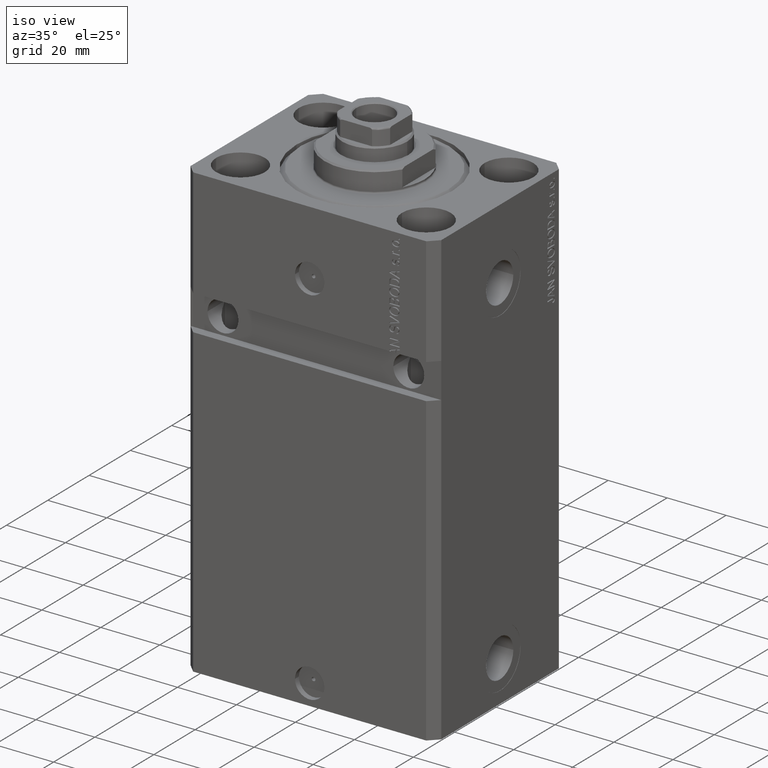
[diagram: clean part render]
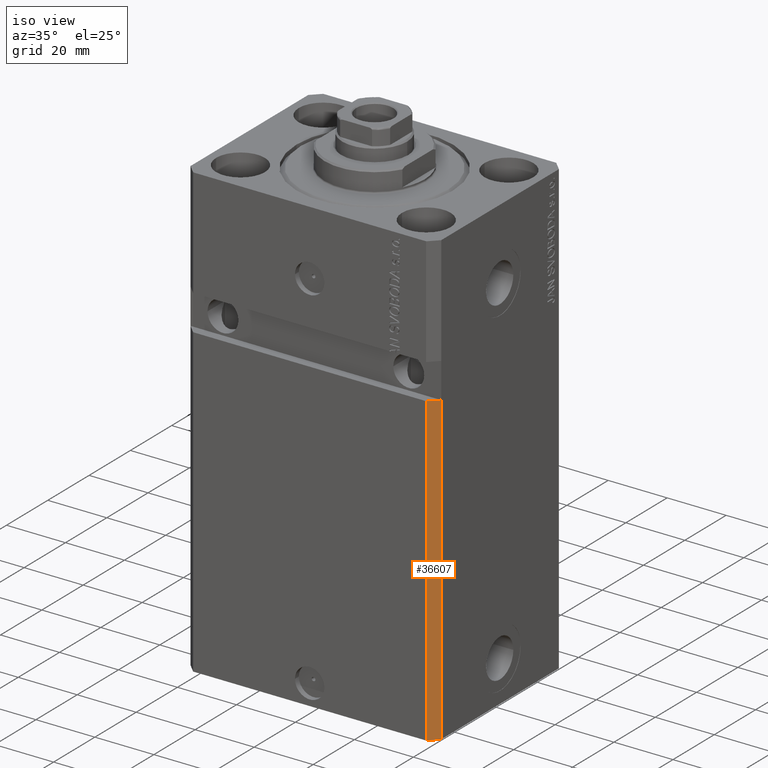
[diagram: same view with one face highlighted and labeled with its STEP entity id]
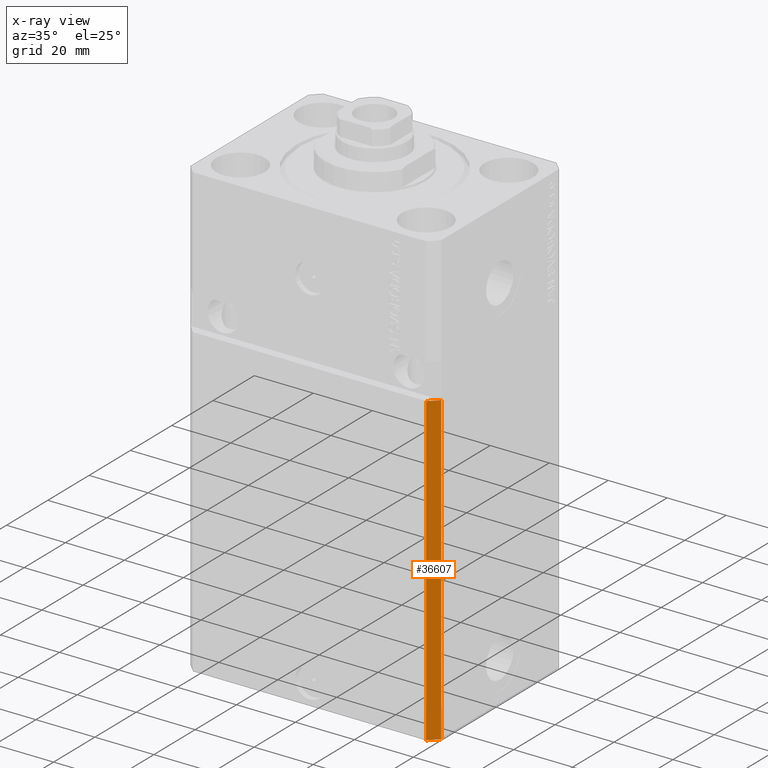
[diagram: x-ray of the same camera — body ghosted, the highlighted face saturated]
A machine part, iso view. The second image highlights one B-rep face of the part: STEP entity #36607.
The next image is the same camera in x-ray: the body ghosted, the highlighted face saturated — about 0% of this face is hidden behind the body in this view.
In plain terms, the highlighted planar face has unit normal (0.7071, -0.7071, 0).
Its self-contained STEP definition (entity closure, byte-faithful):
#410 = VECTOR ( 'NONE', #4192, 1000.000000000000000 ) ;
#1632 = VERTEX_POINT ( 'NONE', #7566 ) ;
#4192 = DIRECTION ( 'NONE',  ( 0.7071067811865483499, 0.7071067811865466846, 0.000000000000000000 ) ) ;
#6920 = CARTESIAN_POINT ( 'NONE',  ( 42.50000000000001421, -28.49999999999999289, -48.99999999999997868 ) ) ;
#7403 = CARTESIAN_POINT ( 'NONE',  ( 39.50000000000000711, -31.50000000000000000, -153.0000000000000000 ) ) ;
#7566 = CARTESIAN_POINT ( 'NONE',  ( 42.50000000000000711, -28.50000000000000355, -153.0000000000000000 ) ) ;
#11543 = DIRECTION ( 'NONE',  ( 0.7071067811865466846, -0.7071067811865483499, 0.000000000000000000 ) ) ;
#12585 = LINE ( 'NONE', #20133, #38587 ) ;
#14786 = EDGE_CURVE ( 'NONE', #26821, #1632, #45304, .T. ) ;
#16527 = EDGE_CURVE ( 'NONE', #26342, #40050, #12585, .T. ) ;
#17217 = ORIENTED_EDGE ( 'NONE', *, *, #14786, .T. ) ;
#18100 = LINE ( 'NONE', #32942, #20004 ) ;
#18208 = CARTESIAN_POINT ( 'NONE',  ( 39.50000000000000711, -31.50000000000000000, -153.0000000000000000 ) ) ;
#18834 = LINE ( 'NONE', #33670, #33414 ) ;
#20004 = VECTOR ( 'NONE', #43660, 1000.000000000000000 ) ;
#20133 = CARTESIAN_POINT ( 'NONE',  ( 39.50000000000000000, -31.50000000000000711, -48.99999999999997158 ) ) ;
#21926 = ORIENTED_EDGE ( 'NONE', *, *, #47592, .T. ) ;
#26047 = ORIENTED_EDGE ( 'NONE', *, *, #40085, .F. ) ;
#26342 = VERTEX_POINT ( 'NONE', #34361 ) ;
#26383 = DIRECTION ( 'NONE',  ( 0.7071067811865483499, 0.7071067811865466846, 0.000000000000000000 ) ) ;
#26821 = VERTEX_POINT ( 'NONE', #18208 ) ;
#27648 = ORIENTED_EDGE ( 'NONE', *, *, #16527, .F. ) ;
#31266 = EDGE_LOOP ( 'NONE', ( #27648, #26047, #17217, #21926 ) ) ;
#32942 = CARTESIAN_POINT ( 'NONE',  ( 39.50000000000000711, -31.50000000000000000, -153.0000000000000000 ) ) ;
#33414 = VECTOR ( 'NONE', #38060, 1000.000000000000000 ) ;
#33434 = FACE_OUTER_BOUND ( 'NONE', #31266, .T. ) ;
#33670 = CARTESIAN_POINT ( 'NONE',  ( 42.50000000000000711, -28.50000000000000355, -153.0000000000000000 ) ) ;
#34361 = CARTESIAN_POINT ( 'NONE',  ( 39.50000000000000000, -31.49999999999999289, -48.99999999999997868 ) ) ;
#34582 = CARTESIAN_POINT ( 'NONE',  ( 39.50000000000000711, -31.50000000000000000, -153.0000000000000000 ) ) ;
#36607 = ADVANCED_FACE ( 'NONE', ( #33434 ), #40746, .T. ) ;
#38060 = DIRECTION ( 'NONE',  ( 0.000000000000000000, 0.000000000000000000, 1.000000000000000000 ) ) ;
#38587 = VECTOR ( 'NONE', #46167, 1000.000000000000000 ) ;
#40050 = VERTEX_POINT ( 'NONE', #6920 ) ;
#40085 = EDGE_CURVE ( 'NONE', #26821, #26342, #18100, .T. ) ;
#40746 = PLANE ( 'NONE',  #47201 ) ;
#43660 = DIRECTION ( 'NONE',  ( 0.000000000000000000, 0.000000000000000000, 1.000000000000000000 ) ) ;
#45304 = LINE ( 'NONE', #34582, #410 ) ;
#46167 = DIRECTION ( 'NONE',  ( 0.7071067811865483499, 0.7071067811865466846, 1.154479749032188485E-16 ) ) ;
#47201 = AXIS2_PLACEMENT_3D ( 'NONE', #7403, #11543, #26383 ) ;
#47592 = EDGE_CURVE ( 'NONE', #1632, #40050, #18834, .T. ) ;